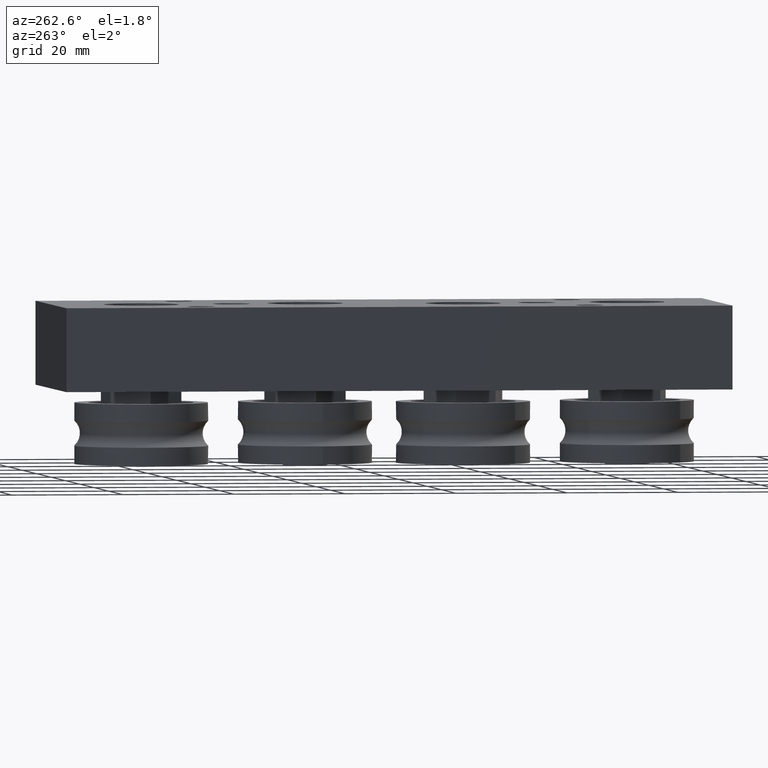
[diagram: clean part render]
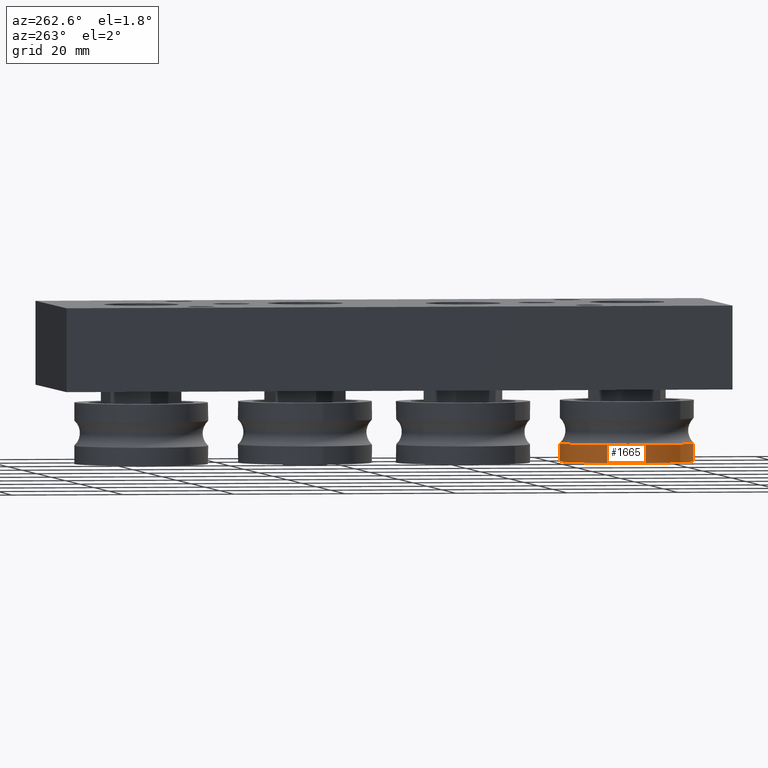
[diagram: same view with one face highlighted and labeled with its STEP entity id]
A machine part, auxiliary view. The second image highlights one B-rep face of the part: STEP entity #1665.
In plain terms, the highlighted cylindrical surface (bore or boss wall) has radius 12 mm, axis along (0, 0, 1).
Its self-contained STEP definition (entity closure, byte-faithful):
#211=LINE('',#3023,#317);
#317=VECTOR('',#2519,12.);
#371=CYLINDRICAL_SURFACE('',#2056,12.);
#503=FACE_OUTER_BOUND('',#647,.T.);
#647=EDGE_LOOP('',(#1421,#1422,#1423,#1424,#1425));
#748=CIRCLE('',#2055,12.);
#749=CIRCLE('',#2057,12.);
#750=CIRCLE('',#2058,12.);
#877=VERTEX_POINT('',#3017);
#878=VERTEX_POINT('',#3020);
#879=VERTEX_POINT('',#3021);
#1065=EDGE_CURVE('',#877,#877,#748,.T.);
#1066=EDGE_CURVE('',#878,#879,#749,.T.);
#1067=EDGE_CURVE('',#878,#877,#211,.T.);
#1068=EDGE_CURVE('',#879,#878,#750,.T.);
#1421=ORIENTED_EDGE('',*,*,#1066,.F.);
#1422=ORIENTED_EDGE('',*,*,#1067,.T.);
#1423=ORIENTED_EDGE('',*,*,#1065,.T.);
#1424=ORIENTED_EDGE('',*,*,#1067,.F.);
#1425=ORIENTED_EDGE('',*,*,#1068,.F.);
#1665=ADVANCED_FACE('',(#503),#371,.T.);
#2055=AXIS2_PLACEMENT_3D('',#3018,#2513,#2514);
#2056=AXIS2_PLACEMENT_3D('',#3019,#2515,#2516);
#2057=AXIS2_PLACEMENT_3D('',#3022,#2517,#2518);
#2058=AXIS2_PLACEMENT_3D('',#3024,#2520,#2521);
#2513=DIRECTION('center_axis',(1.,0.,0.));
#2514=DIRECTION('ref_axis',(0.,1.,0.));
#2515=DIRECTION('center_axis',(1.,0.,0.));
#2516=DIRECTION('ref_axis',(0.,1.,0.));
#2517=DIRECTION('center_axis',(1.,0.,0.));
#2518=DIRECTION('ref_axis',(0.,1.,0.));
#2519=DIRECTION('',(-1.,0.,0.));
#2520=DIRECTION('center_axis',(1.,0.,0.));
#2521=DIRECTION('ref_axis',(0.,1.,0.));
#3017=CARTESIAN_POINT('',(-5.5,-12.,-1.46957615897682E-15));
#3018=CARTESIAN_POINT('Origin',(-5.5,0.,0.));
#3019=CARTESIAN_POINT('Origin',(-3.86803398874989,0.,0.));
#3020=CARTESIAN_POINT('',(-2.23606797749979,-12.,-1.46957615897682E-15));
#3021=CARTESIAN_POINT('',(-2.23606797749979,-1.46957615897682E-15,12.));
#3022=CARTESIAN_POINT('Origin',(-2.23606797749979,0.,0.));
#3023=CARTESIAN_POINT('',(-3.86803398874989,-12.,-1.46957615897682E-15));
#3024=CARTESIAN_POINT('Origin',(-2.23606797749979,0.,0.));